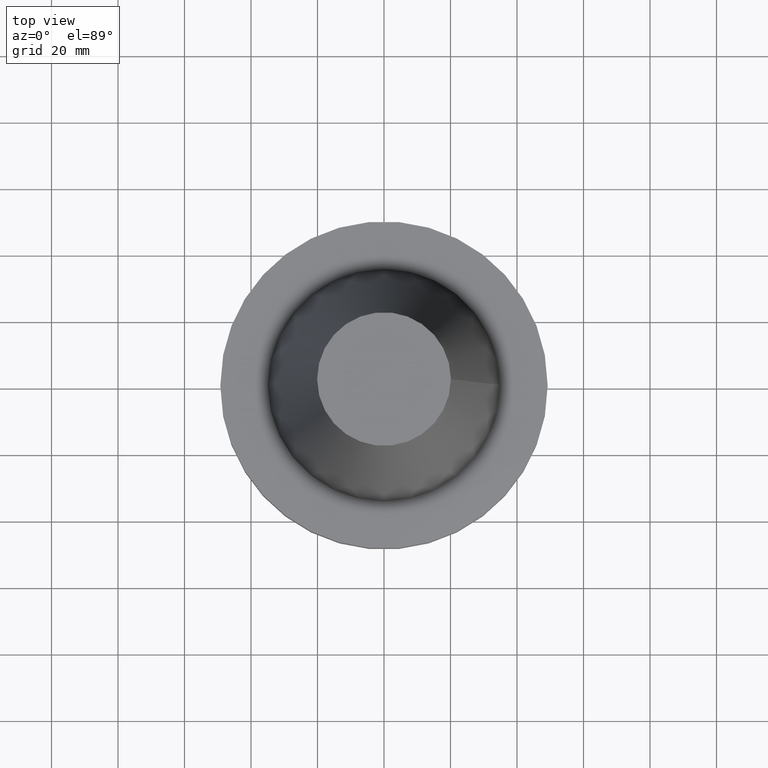
[diagram: clean part render]
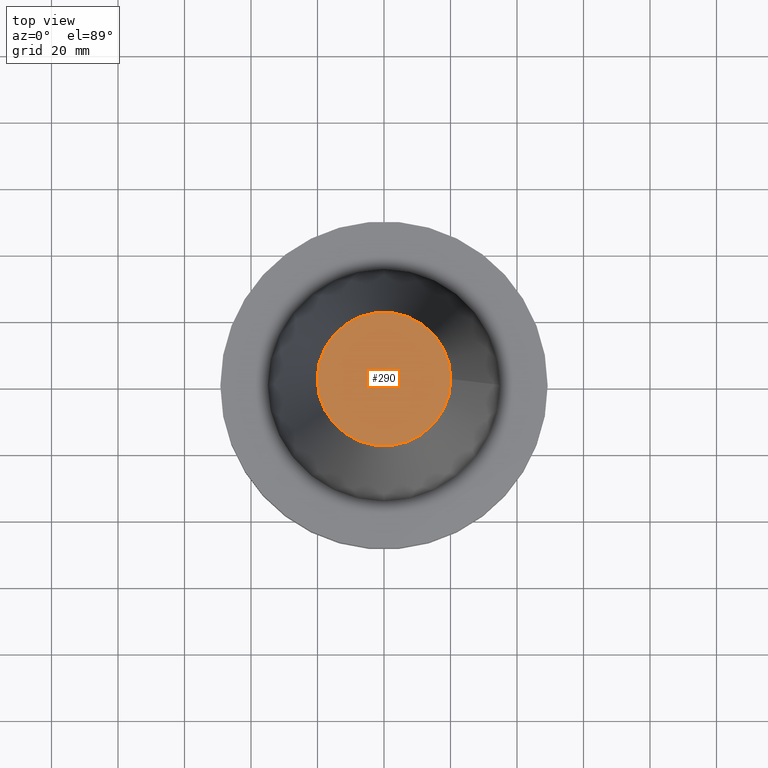
[diagram: same view with one face highlighted and labeled with its STEP entity id]
A machine part, top view. The second image highlights one B-rep face of the part: STEP entity #290.
In plain terms, the highlighted planar face has unit normal (0, 0, -1).
Its self-contained STEP definition (entity closure, byte-faithful):
#21 = CARTESIAN_POINT ( 'NONE',  ( 20.10819343178871321, 0.000000000000000000, 101.5999999999999801 ) ) ;
#54 = EDGE_CURVE ( 'NONE', #110, #110, #222, .T. ) ;
#110 = VERTEX_POINT ( 'NONE', #21 ) ;
#164 = ORIENTED_EDGE ( 'NONE', *, *, #54, .T. ) ;
#181 = AXIS2_PLACEMENT_3D ( 'NONE', #252, #375, #349 ) ;
#219 = PLANE ( 'NONE',  #370 ) ;
#222 = CIRCLE ( 'NONE', #181, 20.10819343178871321 ) ;
#224 = EDGE_LOOP ( 'NONE', ( #164 ) ) ;
#252 = CARTESIAN_POINT ( 'NONE',  ( 0.000000000000000000, 0.000000000000000000, 101.5999999999999801 ) ) ;
#286 = FACE_OUTER_BOUND ( 'NONE', #224, .T. ) ;
#288 = DIRECTION ( 'NONE',  ( 0.000000000000000000, 0.000000000000000000, -1.000000000000000000 ) ) ;
#290 = ADVANCED_FACE ( 'NONE', ( #286 ), #219, .F. ) ;
#323 = CARTESIAN_POINT ( 'NONE',  ( 0.000000000000000000, 20.10819343178871321, 101.5999999999999943 ) ) ;
#349 = DIRECTION ( 'NONE',  ( 1.000000000000000000, 0.000000000000000000, 0.000000000000000000 ) ) ;
#370 = AXIS2_PLACEMENT_3D ( 'NONE', #323, #288, #374 ) ;
#374 = DIRECTION ( 'NONE',  ( -1.000000000000000000, 0.000000000000000000, -0.000000000000000000 ) ) ;
#375 = DIRECTION ( 'NONE',  ( -0.000000000000000000, -0.000000000000000000, 1.000000000000000000 ) ) ;